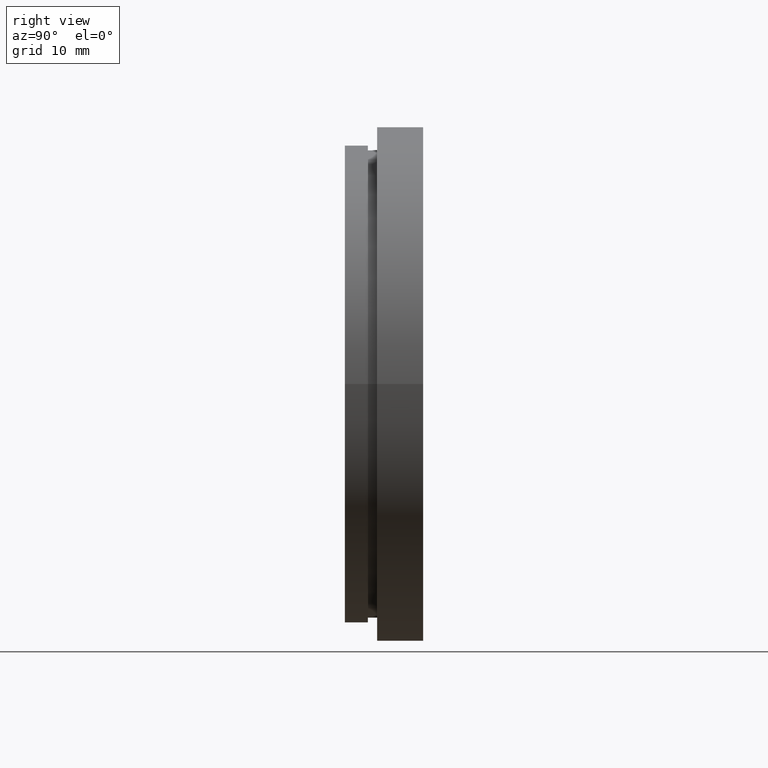
[diagram: clean part render]
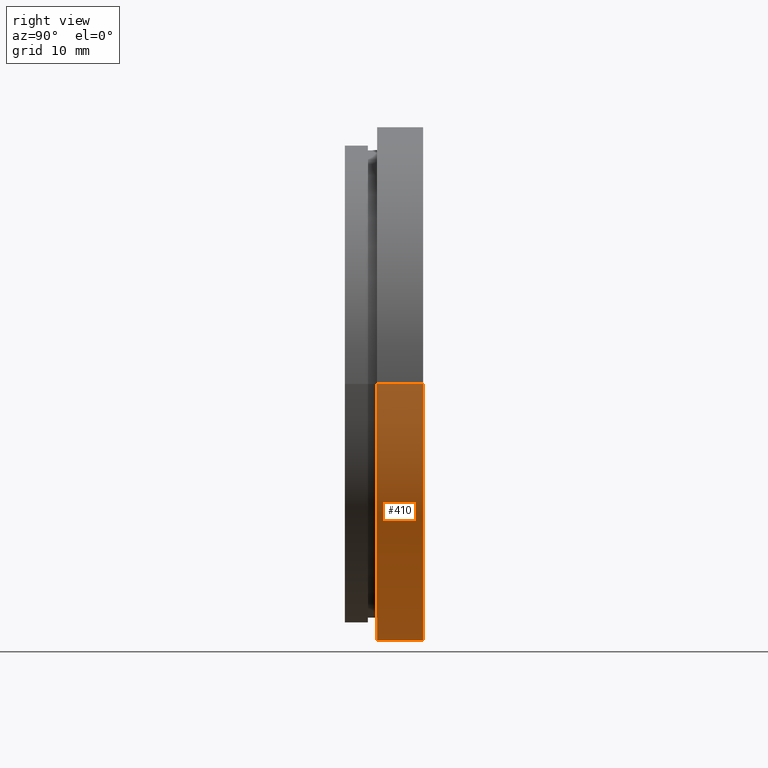
[diagram: same view with one face highlighted and labeled with its STEP entity id]
A machine part, right view. The second image highlights one B-rep face of the part: STEP entity #410.
In plain terms, the highlighted cylindrical surface (partial cylindrical patch) has radius 28 mm, axis along (-0, 1, -0).
Its self-contained STEP definition (entity closure, byte-faithful):
#19 = EDGE_CURVE ( 'NONE', #245, #215, #397, .T. ) ;
#36 = CARTESIAN_POINT ( 'NONE',  ( 1.706114563249712100E-015, 2.954535588880334600, 0.0000000000000000000 ) ) ;
#41 = DIRECTION ( 'NONE',  ( -1.224646799147351000E-016, 1.000000000000000000, -0.0000000000000000000 ) ) ;
#73 = EDGE_LOOP ( 'NONE', ( #121, #336, #399, #332 ) ) ;
#99 = FACE_OUTER_BOUND ( 'NONE', #73, .T. ) ;
#108 = EDGE_CURVE ( 'NONE', #325, #245, #285, .T. ) ;
#113 = CARTESIAN_POINT ( 'NONE',  ( 28.00000000000001100, 2.954535588880338200, 3.429011037612590100E-015 ) ) ;
#121 = ORIENTED_EDGE ( 'NONE', *, *, #108, .F. ) ;
#126 = VECTOR ( 'NONE', #137, 1000.000000000000000 ) ;
#134 = AXIS2_PLACEMENT_3D ( 'NONE', #283, #250, #282 ) ;
#137 = DIRECTION ( 'NONE',  ( -1.224646799147351000E-016, 1.000000000000000000, -0.0000000000000000000 ) ) ;
#156 = CARTESIAN_POINT ( 'NONE',  ( 28.00000000000000400, 16.88601823708208000, 3.429011037612589700E-015 ) ) ;
#169 = VERTEX_POINT ( 'NONE', #384 ) ;
#202 = CARTESIAN_POINT ( 'NONE',  ( 28.00000000000000000, 7.954535588880337300, 3.429011037612589300E-015 ) ) ;
#215 = VERTEX_POINT ( 'NONE', #329 ) ;
#218 = EDGE_CURVE ( 'NONE', #169, #215, #296, .T. ) ;
#245 = VERTEX_POINT ( 'NONE', #202 ) ;
#250 = DIRECTION ( 'NONE',  ( -1.224646799147351000E-016, 1.000000000000000000, -0.0000000000000000000 ) ) ;
#255 = DIRECTION ( 'NONE',  ( -1.224646799147351000E-016, 1.000000000000000000, -0.0000000000000000000 ) ) ;
#273 = DIRECTION ( 'NONE',  ( -1.000000000000000000, -1.239088197126290600E-016, 0.0000000000000000000 ) ) ;
#282 = DIRECTION ( 'NONE',  ( -1.000000000000000000, -1.239088197126290600E-016, 0.0000000000000000000 ) ) ;
#283 = CARTESIAN_POINT ( 'NONE',  ( 0.0000000000000000000, 16.88601823708207700, 0.0000000000000000000 ) ) ;
#285 = LINE ( 'NONE', #156, #331 ) ;
#291 = CIRCLE ( 'NONE', #310, 28.00000000000000700 ) ;
#296 = LINE ( 'NONE', #391, #126 ) ;
#310 = AXIS2_PLACEMENT_3D ( 'NONE', #36, #41, #273 ) ;
#325 = VERTEX_POINT ( 'NONE', #113 ) ;
#329 = CARTESIAN_POINT ( 'NONE',  ( -28.00000000000000000, 7.954535588880330200, 0.0000000000000000000 ) ) ;
#331 = VECTOR ( 'NONE', #255, 1000.000000000000000 ) ;
#332 = ORIENTED_EDGE ( 'NONE', *, *, #19, .F. ) ;
#336 = ORIENTED_EDGE ( 'NONE', *, *, #387, .T. ) ;
#348 = DIRECTION ( 'NONE',  ( -1.000000000000000000, -1.239088197126290800E-016, 0.0000000000000000000 ) ) ;
#358 = AXIS2_PLACEMENT_3D ( 'NONE', #422, #382, #348 ) ;
#360 = CYLINDRICAL_SURFACE ( 'NONE', #134, 28.00000000000000400 ) ;
#382 = DIRECTION ( 'NONE',  ( -1.224646799147351000E-016, 1.000000000000000000, -0.0000000000000000000 ) ) ;
#384 = CARTESIAN_POINT ( 'NONE',  ( -28.00000000000000700, 2.954535588880331100, 0.0000000000000000000 ) ) ;
#387 = EDGE_CURVE ( 'NONE', #325, #169, #291, .T. ) ;
#391 = CARTESIAN_POINT ( 'NONE',  ( -28.00000000000000400, 16.88601823708207300, 0.0000000000000000000 ) ) ;
#397 = CIRCLE ( 'NONE', #358, 28.00000000000000000 ) ;
#399 = ORIENTED_EDGE ( 'NONE', *, *, #218, .T. ) ;
#410 = ADVANCED_FACE ( 'NONE', ( #99 ), #360, .T. ) ;
#422 = CARTESIAN_POINT ( 'NONE',  ( 1.093791163676037000E-015, 7.954535588880333700, 0.0000000000000000000 ) ) ;